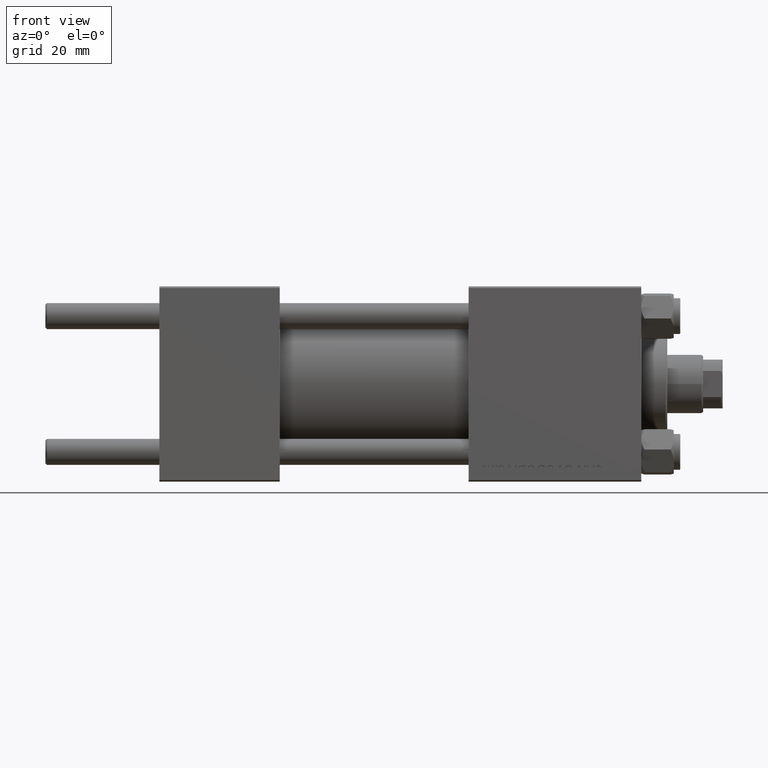
[diagram: clean part render]
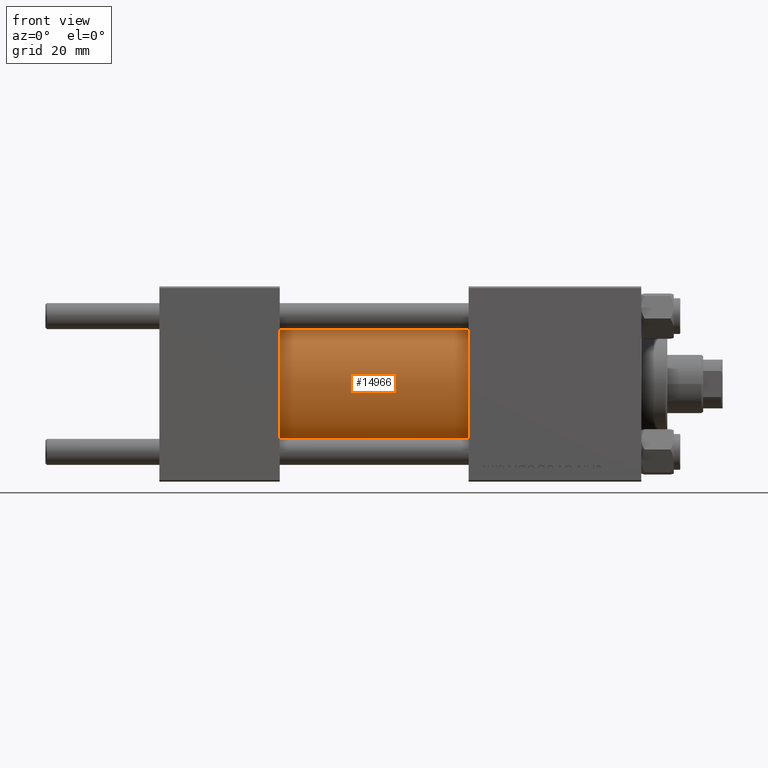
[diagram: same view with one face highlighted and labeled with its STEP entity id]
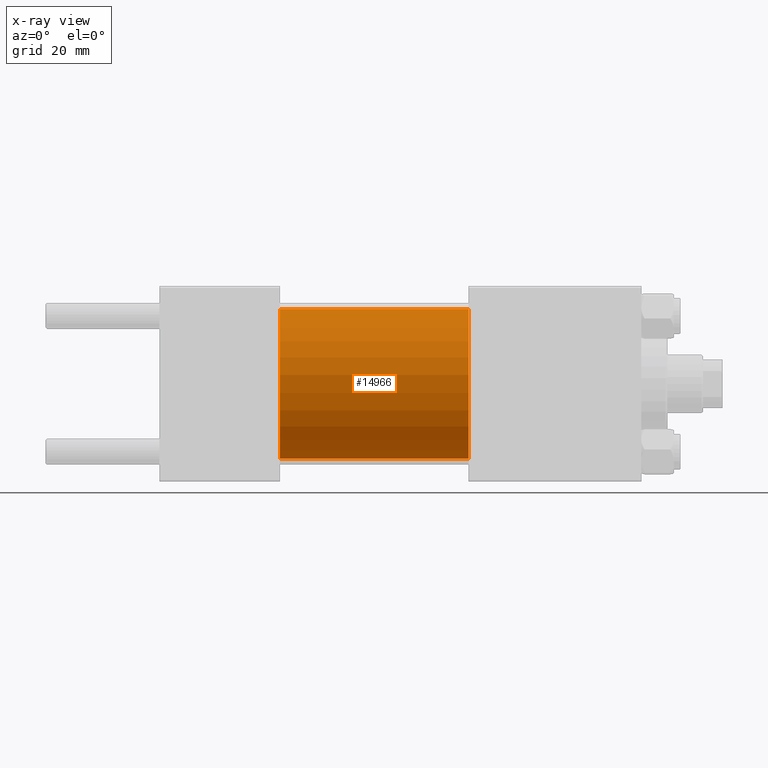
[diagram: x-ray of the same camera — body ghosted, the highlighted face saturated]
A machine part, front view. The second image highlights one B-rep face of the part: STEP entity #14966.
The next image is the same camera in x-ray: the body ghosted, the highlighted face saturated — about 0% of this face is hidden behind the body in this view.
In plain terms, the highlighted cylindrical surface (partial cylindrical patch) has radius 23 mm, axis along (-1, -0, -0).
Its self-contained STEP definition (entity closure, byte-faithful):
#3030 = AXIS2_PLACEMENT_3D ( 'NONE', #44684, #44933, #48482 ) ;
#3032 = VECTOR ( 'NONE', #49416, 1000.000000000000000 ) ;
#3333 = DIRECTION ( 'NONE',  ( 0.000000000000000000, 0.000000000000000000, 1.000000000000000000 ) ) ;
#3595 = DIRECTION ( 'NONE',  ( -1.000000000000000000, -0.000000000000000000, -0.000000000000000000 ) ) ;
#5361 = AXIS2_PLACEMENT_3D ( 'NONE', #8139, #3595, #3333 ) ;
#6928 = CARTESIAN_POINT ( 'NONE',  ( 95.00000000000000000, 2.816687638038911957E-15, -23.00000000000000000 ) ) ;
#7942 = CARTESIAN_POINT ( 'NONE',  ( 37.00000000000000000, 0.000000000000000000, 0.000000000000000000 ) ) ;
#8139 = CARTESIAN_POINT ( 'NONE',  ( 95.00000000000000000, 0.000000000000000000, 0.000000000000000000 ) ) ;
#9741 = DIRECTION ( 'NONE',  ( -1.000000000000000000, -0.000000000000000000, -0.000000000000000000 ) ) ;
#10910 = VERTEX_POINT ( 'NONE', #33496 ) ;
#11422 = FACE_OUTER_BOUND ( 'NONE', #47007, .T. ) ;
#13146 = ORIENTED_EDGE ( 'NONE', *, *, #40064, .T. ) ;
#14966 = ADVANCED_FACE ( 'NONE', ( #11422 ), #45603, .T. ) ;
#16849 = CARTESIAN_POINT ( 'NONE',  ( 95.00000000000000000, 0.000000000000000000, 23.00000000000000000 ) ) ;
#21464 = VERTEX_POINT ( 'NONE', #39112 ) ;
#26444 = DIRECTION ( 'NONE',  ( 0.000000000000000000, 0.000000000000000000, 1.000000000000000000 ) ) ;
#27442 = ORIENTED_EDGE ( 'NONE', *, *, #44868, .F. ) ;
#31515 = ORIENTED_EDGE ( 'NONE', *, *, #41979, .F. ) ;
#32143 = CIRCLE ( 'NONE', #3030, 23.00000000000000000 ) ;
#32798 = LINE ( 'NONE', #16849, #36948 ) ;
#33496 = CARTESIAN_POINT ( 'NONE',  ( 95.00000000000000000, 0.000000000000000000, 23.00000000000000000 ) ) ;
#35042 = DIRECTION ( 'NONE',  ( 1.000000000000000000, -0.000000000000000000, 0.000000000000000000 ) ) ;
#36948 = VECTOR ( 'NONE', #9741, 1000.000000000000000 ) ;
#38207 = VERTEX_POINT ( 'NONE', #42137 ) ;
#39112 = CARTESIAN_POINT ( 'NONE',  ( 95.00000000000000000, 2.816687638038911957E-15, -23.00000000000000000 ) ) ;
#40064 = EDGE_CURVE ( 'NONE', #10910, #43103, #32798, .T. ) ;
#41116 = LINE ( 'NONE', #6928, #3032 ) ;
#41939 = CIRCLE ( 'NONE', #44407, 23.00000000000000000 ) ;
#41979 = EDGE_CURVE ( 'NONE', #21464, #38207, #41116, .T. ) ;
#42137 = CARTESIAN_POINT ( 'NONE',  ( 37.00000000000000000, 2.816687638038911957E-15, -23.00000000000000000 ) ) ;
#43103 = VERTEX_POINT ( 'NONE', #45038 ) ;
#44407 = AXIS2_PLACEMENT_3D ( 'NONE', #7942, #35042, #26444 ) ;
#44684 = CARTESIAN_POINT ( 'NONE',  ( 95.00000000000000000, 0.000000000000000000, 0.000000000000000000 ) ) ;
#44868 = EDGE_CURVE ( 'NONE', #10910, #21464, #32143, .T. ) ;
#44933 = DIRECTION ( 'NONE',  ( 1.000000000000000000, 0.000000000000000000, 0.000000000000000000 ) ) ;
#45038 = CARTESIAN_POINT ( 'NONE',  ( 37.00000000000000000, 0.000000000000000000, 23.00000000000000000 ) ) ;
#45603 = CYLINDRICAL_SURFACE ( 'NONE', #5361, 23.00000000000000000 ) ;
#45654 = ORIENTED_EDGE ( 'NONE', *, *, #49113, .T. ) ;
#47007 = EDGE_LOOP ( 'NONE', ( #31515, #27442, #13146, #45654 ) ) ;
#48482 = DIRECTION ( 'NONE',  ( 0.000000000000000000, 0.000000000000000000, -1.000000000000000000 ) ) ;
#49113 = EDGE_CURVE ( 'NONE', #43103, #38207, #41939, .T. ) ;
#49416 = DIRECTION ( 'NONE',  ( -1.000000000000000000, -0.000000000000000000, -0.000000000000000000 ) ) ;